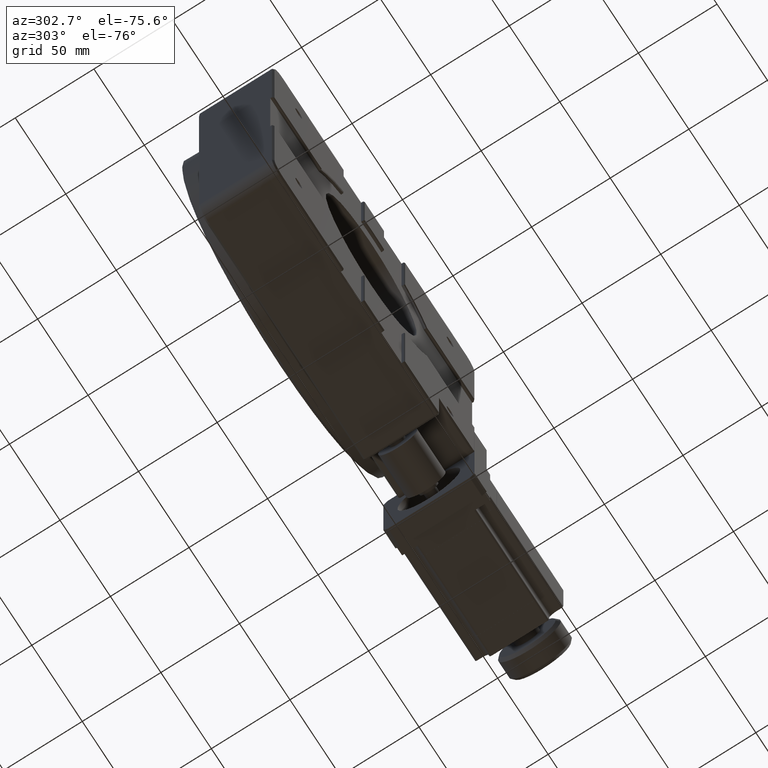
[diagram: clean part render]
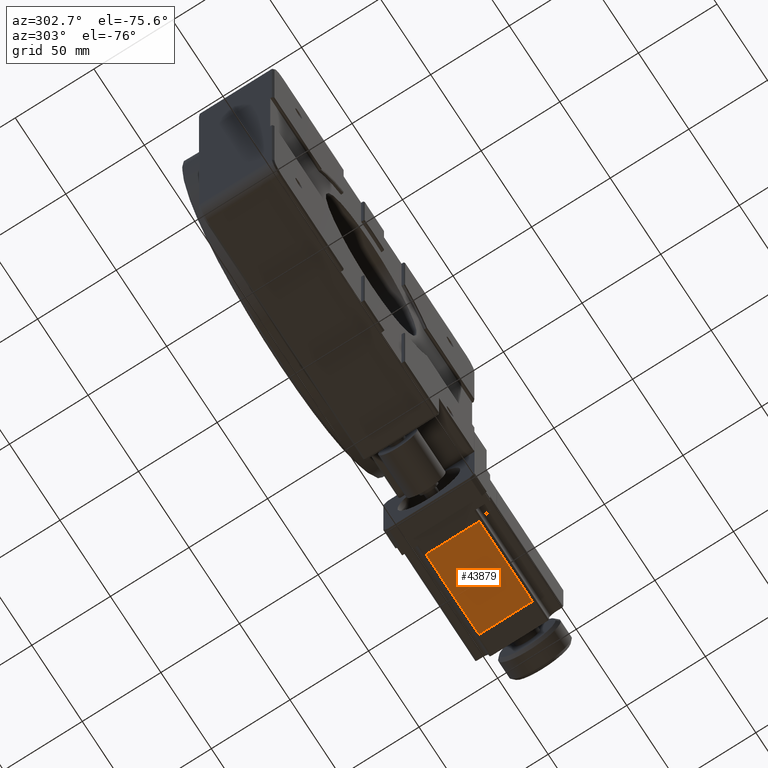
[diagram: same view with one face highlighted and labeled with its STEP entity id]
A machine part, auxiliary view. The second image highlights one B-rep face of the part: STEP entity #43879.
In plain terms, the highlighted planar face has unit normal (-0, -0, 1).
Its self-contained STEP definition (entity closure, byte-faithful):
#1554 = CARTESIAN_POINT ( 'NONE',  ( 289.5000000000000000, 46.50000000000002800, -225.9999999999998300 ) ) ;
#2646 = VERTEX_POINT ( 'NONE', #3226 ) ;
#2681 = VERTEX_POINT ( 'NONE', #43349 ) ;
#2698 = ORIENTED_EDGE ( 'NONE', *, *, #49405, .T. ) ;
#3226 = CARTESIAN_POINT ( 'NONE',  ( 223.4999999999999700, 46.49999999999997200, -225.9999999999998900 ) ) ;
#3234 = ORIENTED_EDGE ( 'NONE', *, *, #22686, .F. ) ;
#5715 = ORIENTED_EDGE ( 'NONE', *, *, #28604, .F. ) ;
#5719 = DIRECTION ( 'NONE',  ( -1.000000000000000000, -9.436895709313832600E-016, -6.943570314702293000E-016 ) ) ;
#5995 = EDGE_CURVE ( 'NONE', #2681, #21283, #45203, .T. ) ;
#8994 = DIRECTION ( 'NONE',  ( 1.000000000000000000, 9.381252327465557100E-016, 6.943570314702293000E-016 ) ) ;
#12843 = DIRECTION ( 'NONE',  ( 9.436895709313832600E-016, -1.000000000000000000, -9.993358904313220600E-017 ) ) ;
#14132 = VERTEX_POINT ( 'NONE', #19906 ) ;
#15854 = DIRECTION ( 'NONE',  ( -6.943570314702292100E-016, -9.993358904313285900E-017, 1.000000000000000000 ) ) ;
#18083 = LINE ( 'NONE', #32256, #41109 ) ;
#18815 = LINE ( 'NONE', #1554, #33217 ) ;
#19877 = DIRECTION ( 'NONE',  ( 9.436895709313832600E-016, -1.000000000000000000, -9.993358904313220600E-017 ) ) ;
#19906 = CARTESIAN_POINT ( 'NONE',  ( 275.9999999999999400, 46.50000000000002800, -225.9999999999998600 ) ) ;
#20812 = CARTESIAN_POINT ( 'NONE',  ( 217.0000000000000000, 12.49999999999996600, -225.9999999999999400 ) ) ;
#21283 = VERTEX_POINT ( 'NONE', #30984 ) ;
#22686 = EDGE_CURVE ( 'NONE', #2646, #2681, #18083, .T. ) ;
#25071 = DIRECTION ( 'NONE',  ( 9.381252327465557100E-016, -1.000000000000000000, 1.055179245494992600E-017 ) ) ;
#28268 = AXIS2_PLACEMENT_3D ( 'NONE', #43886, #15854, #19877 ) ;
#28604 = EDGE_CURVE ( 'NONE', #14132, #2646, #18815, .T. ) ;
#30779 = LINE ( 'NONE', #37085, #51211 ) ;
#30984 = CARTESIAN_POINT ( 'NONE',  ( 276.0000000000000000, 12.50000000000001400, -225.9999999999998900 ) ) ;
#32256 = CARTESIAN_POINT ( 'NONE',  ( 223.5000000000000000, 12.49999999999998000, -225.9999999999998900 ) ) ;
#33217 = VECTOR ( 'NONE', #5719, 1000.000000000000000 ) ;
#36612 = FACE_OUTER_BOUND ( 'NONE', #36945, .T. ) ;
#36945 = EDGE_LOOP ( 'NONE', ( #2698, #41188, #3234, #5715 ) ) ;
#37085 = CARTESIAN_POINT ( 'NONE',  ( 275.9999999999999400, 55.50000000000002100, -225.9999999999998900 ) ) ;
#38858 = PLANE ( 'NONE',  #28268 ) ;
#41109 = VECTOR ( 'NONE', #12843, 1000.000000000000000 ) ;
#41188 = ORIENTED_EDGE ( 'NONE', *, *, #5995, .F. ) ;
#43349 = CARTESIAN_POINT ( 'NONE',  ( 223.5000000000000000, 12.49999999999996600, -225.9999999999999100 ) ) ;
#43879 = ADVANCED_FACE ( 'NONE', ( #36612 ), #38858, .F. ) ;
#43886 = CARTESIAN_POINT ( 'NONE',  ( 289.5000000000000600, 12.50000000000004300, -225.9999999999998300 ) ) ;
#43943 = VECTOR ( 'NONE', #8994, 1000.000000000000000 ) ;
#45203 = LINE ( 'NONE', #20812, #43943 ) ;
#49405 = EDGE_CURVE ( 'NONE', #14132, #21283, #30779, .T. ) ;
#51211 = VECTOR ( 'NONE', #25071, 1000.000000000000000 ) ;